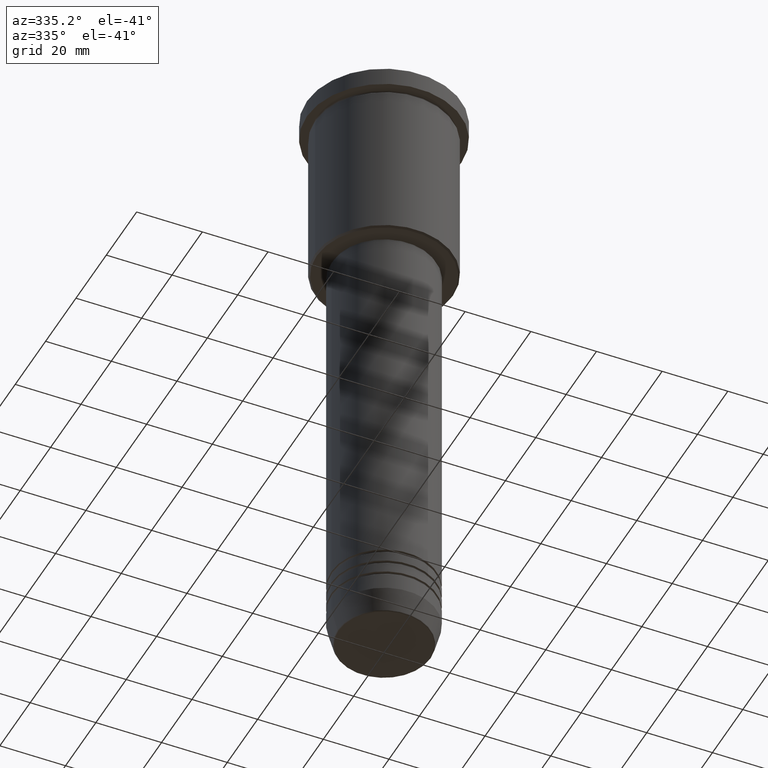
[diagram: clean part render]
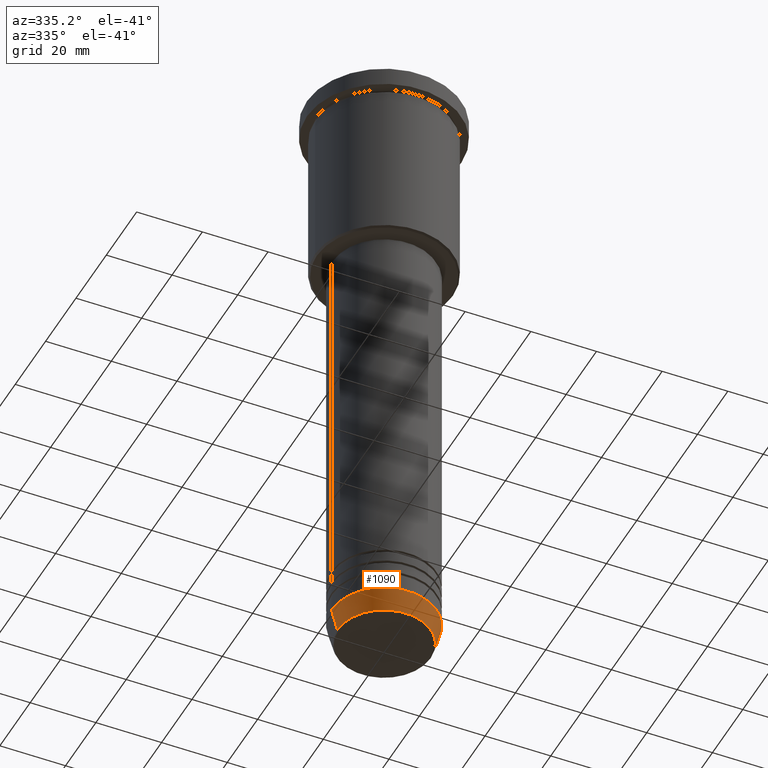
[diagram: same view with one face highlighted and labeled with its STEP entity id]
A machine part, auxiliary view. The second image highlights one B-rep face of the part: STEP entity #1090.
In plain terms, the highlighted conical surface has half-angle 15 deg.
Its self-contained STEP definition (entity closure, byte-faithful):
#1 = DIRECTION ( 'NONE',  ( 1.000000000000000000, 0.000000000000000000, 0.000000000000000000 ) ) ;
#99 = VECTOR ( 'NONE', #327, 1000.000000000000000 ) ;
#103 = DIRECTION ( 'NONE',  ( 0.2588190451025213501, 0.000000000000000000, 0.9659258262890680902 ) ) ;
#134 = EDGE_CURVE ( 'NONE', #161, #1025, #494, .T. ) ;
#158 = VERTEX_POINT ( 'NONE', #805 ) ;
#161 = VERTEX_POINT ( 'NONE', #816 ) ;
#179 = FACE_OUTER_BOUND ( 'NONE', #695, .T. ) ;
#246 = ORIENTED_EDGE ( 'NONE', *, *, #1101, .F. ) ;
#312 = EDGE_CURVE ( 'NONE', #1025, #1153, #479, .T. ) ;
#327 = DIRECTION ( 'NONE',  ( -0.2588190451025213501, 3.169619151431772337E-17, 0.9659258262890680902 ) ) ;
#328 = CARTESIAN_POINT ( 'NONE',  ( 14.22365507213718772, 0.000000000000000000, -190.6294095225512422 ) ) ;
#336 = ORIENTED_EDGE ( 'NONE', *, *, #312, .T. ) ;
#375 = CARTESIAN_POINT ( 'NONE',  ( 0.000000000000000000, 0.000000000000000000, -184.0000000000000000 ) ) ;
#433 = EDGE_CURVE ( 'NONE', #161, #158, #1136, .T. ) ;
#479 = LINE ( 'NONE', #659, #533 ) ;
#494 = CIRCLE ( 'NONE', #872, 14.22365507213718772 ) ;
#497 = CIRCLE ( 'NONE', #662, 16.00000000000000000 ) ;
#533 = VECTOR ( 'NONE', #103, 1000.000000000000000 ) ;
#622 = DIRECTION ( 'NONE',  ( -0.000000000000000000, -0.000000000000000000, 1.000000000000000000 ) ) ;
#659 = CARTESIAN_POINT ( 'NONE',  ( 16.00000000000000000, 0.000000000000000000, -184.0000000000000000 ) ) ;
#662 = AXIS2_PLACEMENT_3D ( 'NONE', #375, #735, #1094 ) ;
#695 = EDGE_LOOP ( 'NONE', ( #923, #813, #336, #246 ) ) ;
#716 = CARTESIAN_POINT ( 'NONE',  ( 0.000000000000000000, 0.000000000000000000, -190.6294095225512422 ) ) ;
#735 = DIRECTION ( 'NONE',  ( -0.000000000000000000, -0.000000000000000000, 1.000000000000000000 ) ) ;
#746 = DIRECTION ( 'NONE',  ( -0.000000000000000000, -0.000000000000000000, 1.000000000000000000 ) ) ;
#786 = CARTESIAN_POINT ( 'NONE',  ( 16.00000000000000000, 0.000000000000000000, -184.0000000000000000 ) ) ;
#805 = CARTESIAN_POINT ( 'NONE',  ( -16.00000000000000000, 1.959434878635765131E-15, -184.0000000000000000 ) ) ;
#813 = ORIENTED_EDGE ( 'NONE', *, *, #134, .T. ) ;
#816 = CARTESIAN_POINT ( 'NONE',  ( -14.22365507213718772, 1.850665122131323337E-15, -190.6294095225512422 ) ) ;
#825 = CARTESIAN_POINT ( 'NONE',  ( 0.000000000000000000, 0.000000000000000000, -184.0000000000000000 ) ) ;
#872 = AXIS2_PLACEMENT_3D ( 'NONE', #716, #622, #1077 ) ;
#923 = ORIENTED_EDGE ( 'NONE', *, *, #433, .F. ) ;
#1014 = AXIS2_PLACEMENT_3D ( 'NONE', #825, #746, #1 ) ;
#1025 = VERTEX_POINT ( 'NONE', #328 ) ;
#1077 = DIRECTION ( 'NONE',  ( 1.000000000000000000, 0.000000000000000000, 0.000000000000000000 ) ) ;
#1090 = ADVANCED_FACE ( 'NONE', ( #179 ), #1139, .T. ) ;
#1094 = DIRECTION ( 'NONE',  ( 1.000000000000000000, 0.000000000000000000, 0.000000000000000000 ) ) ;
#1101 = EDGE_CURVE ( 'NONE', #158, #1153, #497, .T. ) ;
#1136 = LINE ( 'NONE', #1143, #99 ) ;
#1139 = CONICAL_SURFACE ( 'NONE', #1014, 16.00000000000000000, 0.2617993877991500740 ) ;
#1143 = CARTESIAN_POINT ( 'NONE',  ( -16.00000000000000000, 1.959434878635765131E-15, -184.0000000000000000 ) ) ;
#1153 = VERTEX_POINT ( 'NONE', #786 ) ;